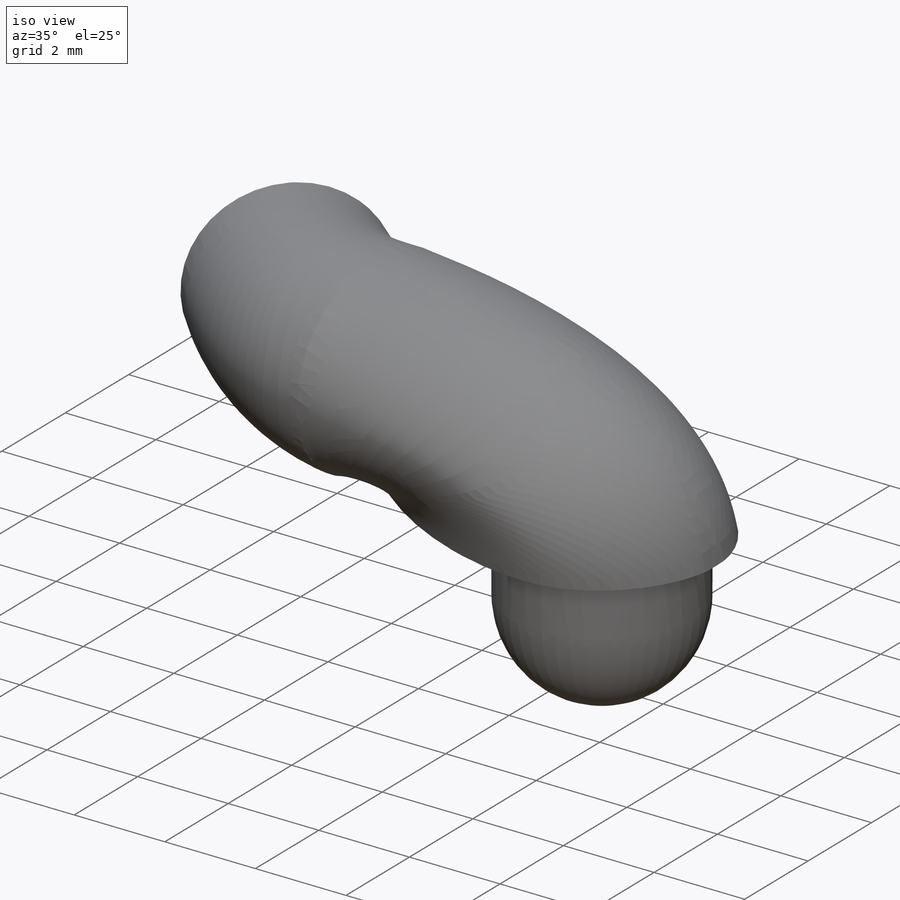
[diagram: iso view]
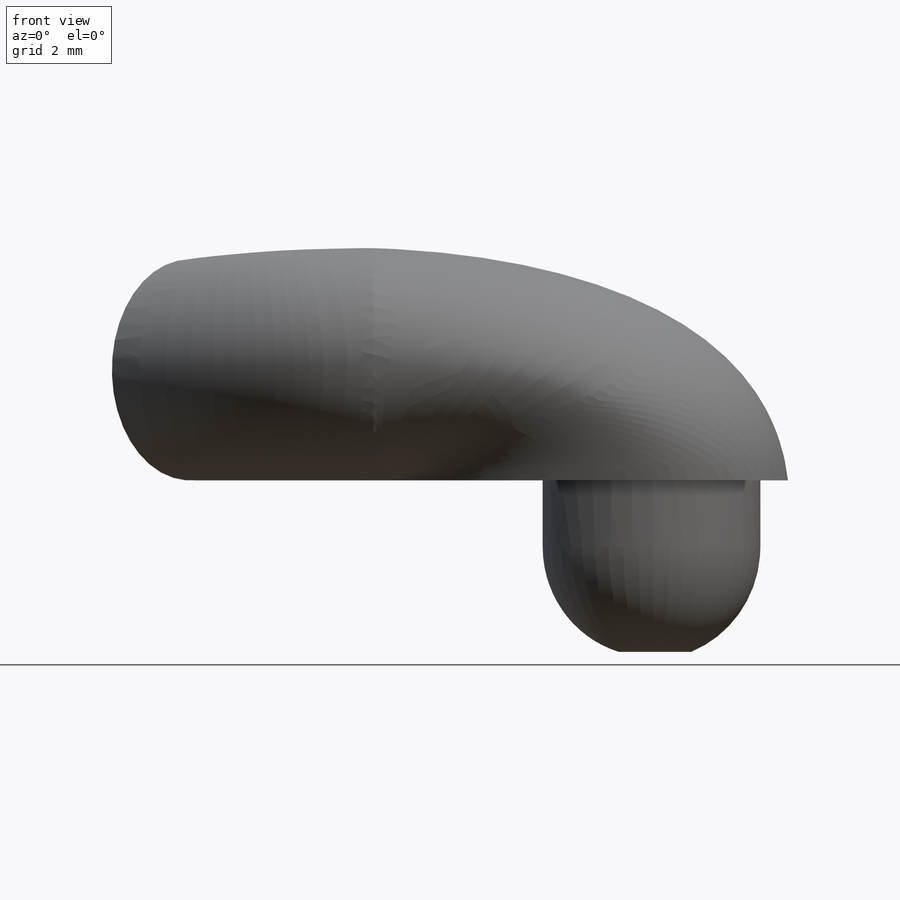
[diagram: front view]
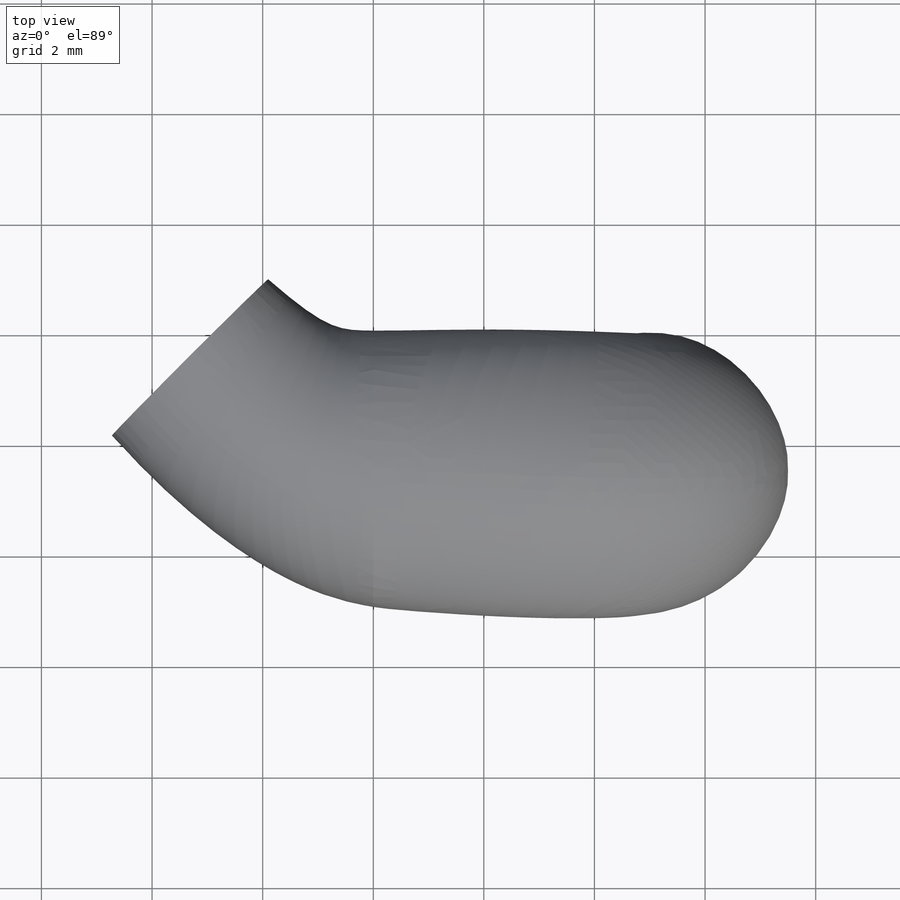
[diagram: top view]
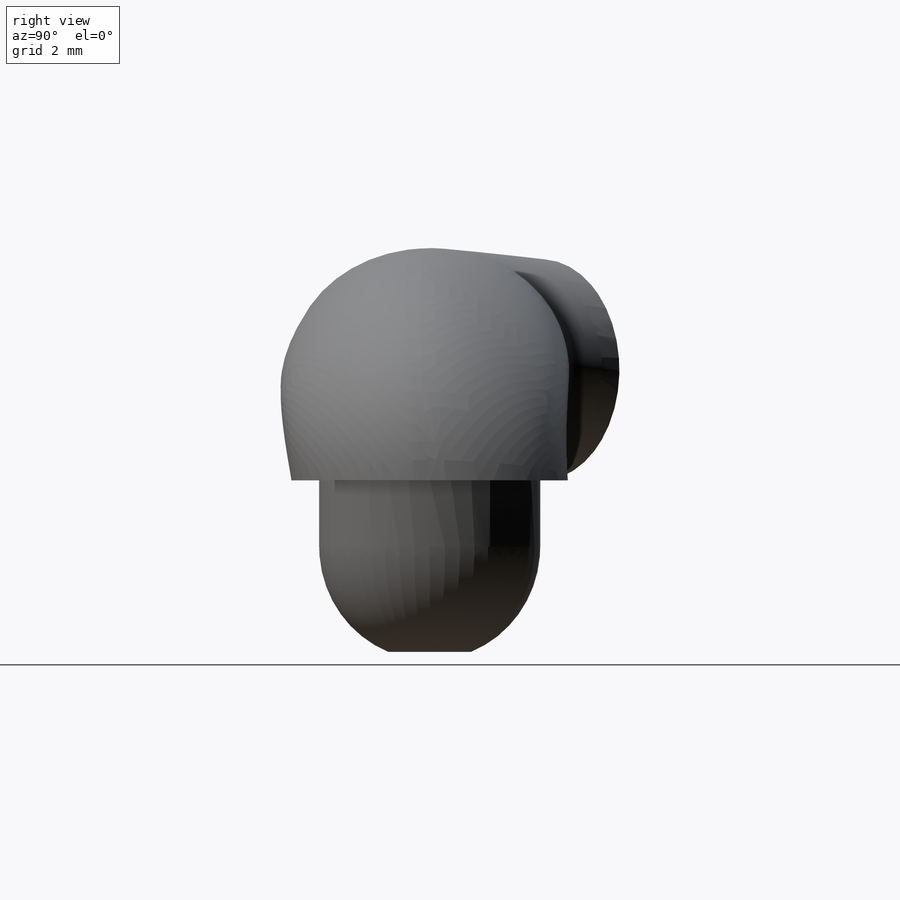
[diagram: right view]
SOLIDWORKS PART (.sldprt)
format: sldprt  version: not decoded by parser v0  size: 427,520 bytes
history: native  units: mm
features: sketch x13, plane x3, cut_extrude x2, material x1, extrude x1, dome x1 (+11 scaffold rows collapsed)
feature tree (32):
  scaffold x11  (default folders/planes/origin — collapsed)
  material  "Material <not specified>"
  sketch  "Sketch1"  dims[D1=5.0mm D2=7.5mm D3=2.5mm D4=5.0mm]
  sketch  "Sketch2"  dims[c1.D1=4.2mm c1.D2=4.2mm c2.D1=4.2mm c2.D2=5.0mm]
  plane  "Plane2"
  plane  "Plane4"  Offset=2mm
  sketch  "Sketch5"  dims[D1=4.0mm D2=4.0mm D3=4.2mm]
  sketch  "3DSketch4"
  sketch  "3DSketch6"
  sketch  "3DSketch7"
  sketch  "3DSketch8"
  sketch  "3DSketch8<5>"
  sketch  "3DSketch6<4>"
  sketch  "3DSketch4<4>"
  sketch  "Sketch8"  dims[D1=2.25mm]
  cut_extrude  "Cut-Extrude1"  Depth=5mm
  plane  "Plane5"  Offset=2.5mm
  sketch  "Sketch12"  dims[D1=4.0mm]
  extrude  "Boss-Extrude2"  Depth=1.2mm
  dome  "Dome3"
  sketch  "Sketch13"  dims[D1=1.5mm D2=0.5mm D3=0.5mm]
  cut_extrude  "Cut-Extrude2"  [1 undecoded]
decode coverage: 8 of 17 modeling features carry decoded parameters
note: 1 parameter value undecoded
note: suppression state not decoded; provenance and decode notes live in map.json
